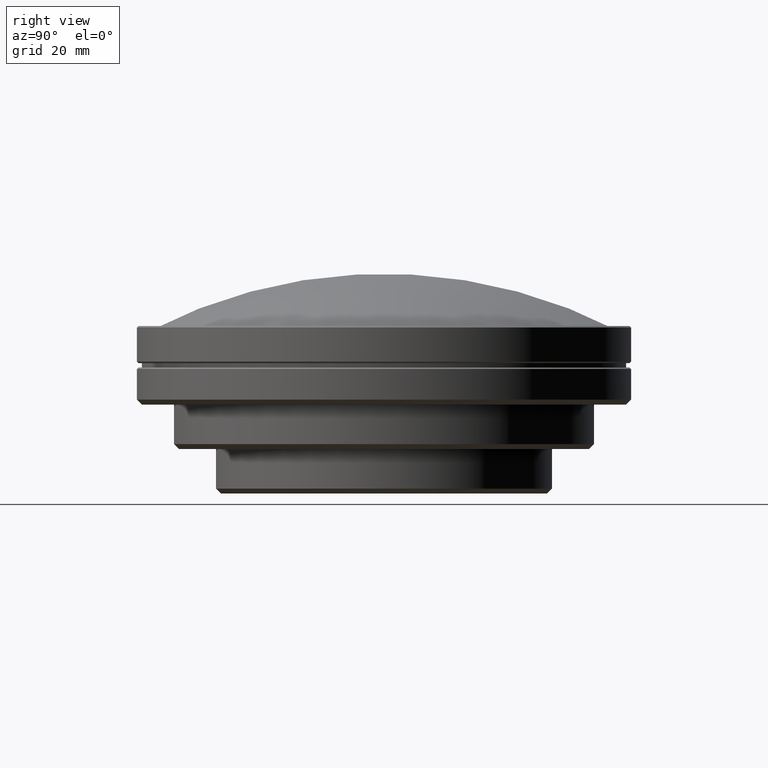
[diagram: clean part render]
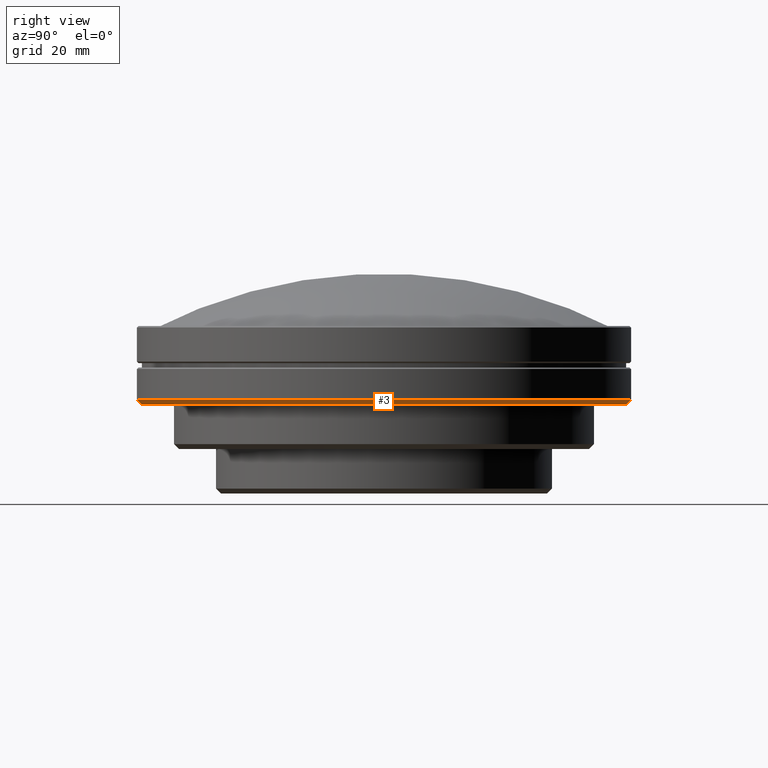
[diagram: same view with one face highlighted and labeled with its STEP entity id]
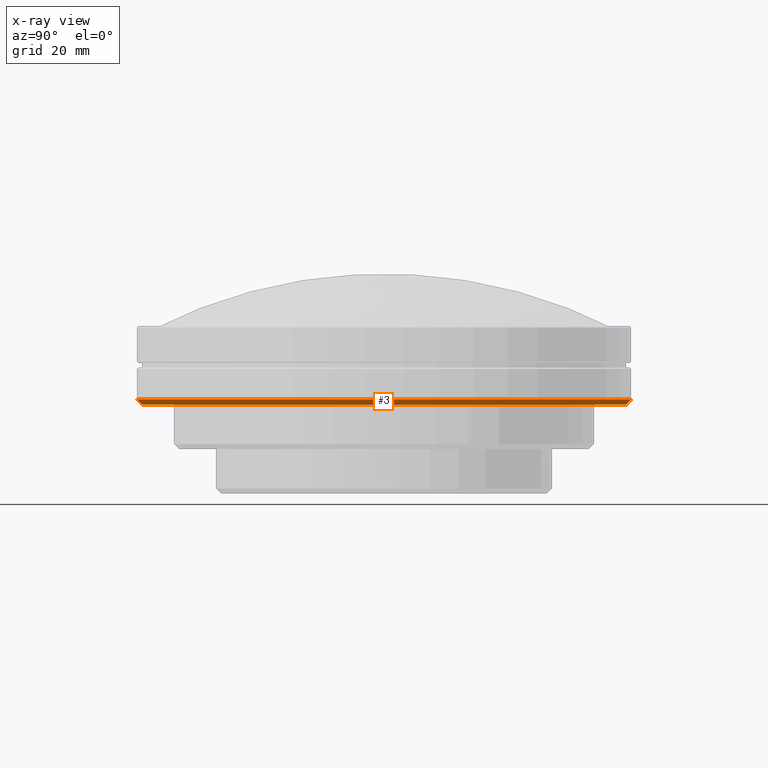
[diagram: x-ray of the same camera — body ghosted, the highlighted face saturated]
A machine part, right view. The second image highlights one B-rep face of the part: STEP entity #3.
The next image is the same camera in x-ray: the body ghosted, the highlighted face saturated — about 0% of this face is hidden behind the body in this view.
In plain terms, the highlighted conical surface has half-angle 45 deg.
Its self-contained STEP definition (entity closure, byte-faithful):
#3 = ADVANCED_FACE ( 'NONE', ( #384 ), #899, .T. ) ;
#8 = DIRECTION ( 'NONE',  ( 0.000000000000000000, 0.000000000000000000, -1.000000000000000000 ) ) ;
#55 = DIRECTION ( 'NONE',  ( 0.000000000000000000, -0.7071067811864980568, 0.7071067811865969777 ) ) ;
#67 = DIRECTION ( 'NONE',  ( 0.000000000000000000, 0.7071067811864980568, 0.7071067811865969777 ) ) ;
#73 = AXIS2_PLACEMENT_3D ( 'NONE', #352, #503, #659 ) ;
#99 = AXIS2_PLACEMENT_3D ( 'NONE', #139, #759, #449 ) ;
#139 = CARTESIAN_POINT ( 'NONE',  ( 0.000000000000000000, 0.000000000000000000, 27.49999999990999910 ) ) ;
#225 = VERTEX_POINT ( 'NONE', #817 ) ;
#233 = CIRCLE ( 'NONE', #310, 48.99999999981999821 ) ;
#237 = VERTEX_POINT ( 'NONE', #716 ) ;
#246 = CARTESIAN_POINT ( 'NONE',  ( 0.000000000000000000, -48.99999999981999821, 26.99999999981999821 ) ) ;
#249 = CIRCLE ( 'NONE', #73, 50.00000000000000000 ) ;
#310 = AXIS2_PLACEMENT_3D ( 'NONE', #547, #8, #626 ) ;
#352 = CARTESIAN_POINT ( 'NONE',  ( 0.000000000000000000, 0.000000000000000000, 28.00000000000000000 ) ) ;
#384 = FACE_OUTER_BOUND ( 'NONE', #388, .T. ) ;
#388 = EDGE_LOOP ( 'NONE', ( #920, #679, #786, #714 ) ) ;
#449 = DIRECTION ( 'NONE',  ( 0.000000000000000000, 1.000000000000000000, 0.000000000000000000 ) ) ;
#474 = VERTEX_POINT ( 'NONE', #246 ) ;
#503 = DIRECTION ( 'NONE',  ( 0.000000000000000000, 0.000000000000000000, -1.000000000000000000 ) ) ;
#514 = VECTOR ( 'NONE', #55, 1000.000000000000000 ) ;
#533 = CARTESIAN_POINT ( 'NONE',  ( 0.000000000000000000, 48.99999999981999821, 26.99999999981999821 ) ) ;
#536 = VECTOR ( 'NONE', #67, 1000.000000000000000 ) ;
#547 = CARTESIAN_POINT ( 'NONE',  ( 0.000000000000000000, 0.000000000000000000, 26.99999999981999821 ) ) ;
#608 = LINE ( 'NONE', #533, #536 ) ;
#613 = EDGE_CURVE ( 'NONE', #237, #474, #233, .T. ) ;
#614 = CARTESIAN_POINT ( 'NONE',  ( 0.000000000000000000, -48.99999999981999821, 26.99999999981999821 ) ) ;
#626 = DIRECTION ( 'NONE',  ( 0.000000000000000000, 1.000000000000000000, 0.000000000000000000 ) ) ;
#659 = DIRECTION ( 'NONE',  ( 0.000000000000000000, 1.000000000000000000, 0.000000000000000000 ) ) ;
#675 = CARTESIAN_POINT ( 'NONE',  ( 0.000000000000000000, 50.00000000000000000, 28.00000000000000000 ) ) ;
#679 = ORIENTED_EDGE ( 'NONE', *, *, #828, .F. ) ;
#680 = LINE ( 'NONE', #614, #514 ) ;
#714 = ORIENTED_EDGE ( 'NONE', *, *, #845, .T. ) ;
#716 = CARTESIAN_POINT ( 'NONE',  ( 0.000000000000000000, 48.99999999981999821, 26.99999999981999821 ) ) ;
#745 = EDGE_CURVE ( 'NONE', #882, #225, #249, .T. ) ;
#759 = DIRECTION ( 'NONE',  ( 0.000000000000000000, 0.000000000000000000, 1.000000000000000000 ) ) ;
#786 = ORIENTED_EDGE ( 'NONE', *, *, #613, .F. ) ;
#817 = CARTESIAN_POINT ( 'NONE',  ( 0.000000000000000000, -50.00000000000000000, 28.00000000000000000 ) ) ;
#828 = EDGE_CURVE ( 'NONE', #474, #225, #680, .T. ) ;
#845 = EDGE_CURVE ( 'NONE', #237, #882, #608, .T. ) ;
#882 = VERTEX_POINT ( 'NONE', #675 ) ;
#899 = CONICAL_SURFACE ( 'NONE', #99, 49.49999999990999555, 0.7853981633972997312 ) ;
#920 = ORIENTED_EDGE ( 'NONE', *, *, #745, .T. ) ;